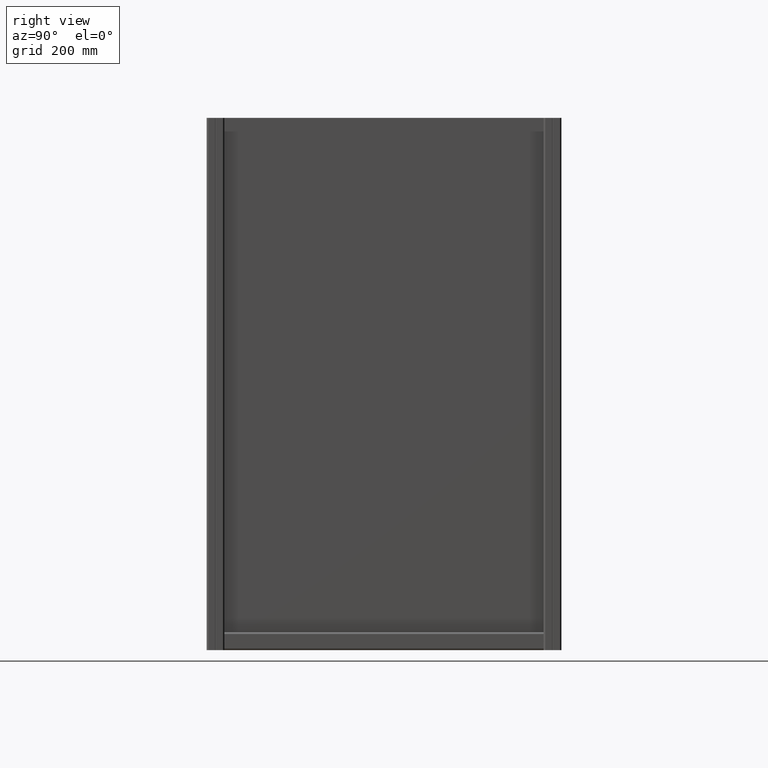
[diagram: clean part render]
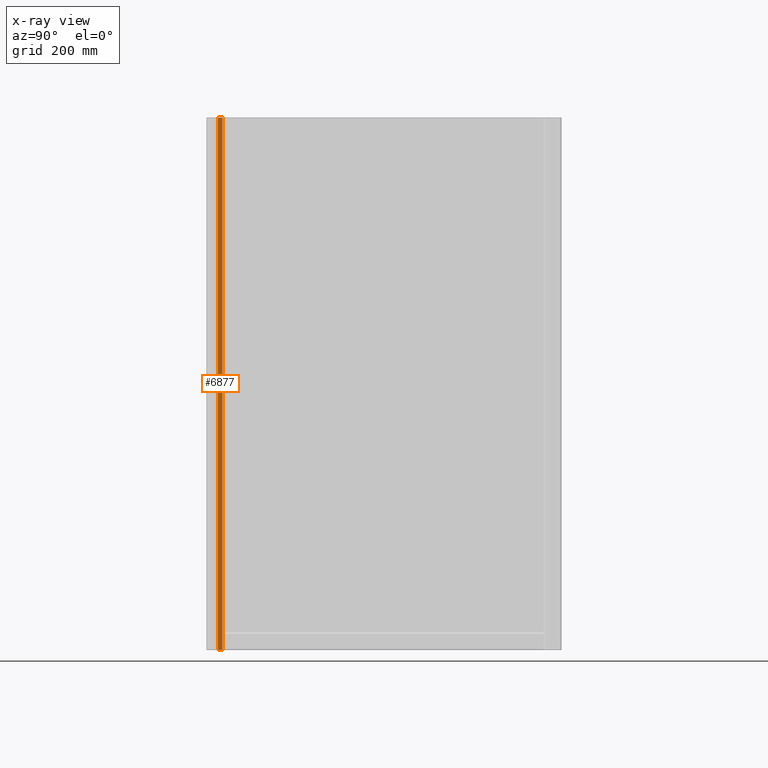
[diagram: x-ray — body ghosted, one internal face saturated and labeled with its STEP entity id]
A machine part, right view, then the same camera in x-ray: the body is ghosted and one INTERNAL B-rep face — a face not visible from any outside direction — is saturated and labeled: STEP entity #6877.
In plain terms, the highlighted planar face has unit normal (-1, 0, 0).
Its self-contained STEP definition (entity closure, byte-faithful):
#956 = PLANE ( 'NONE',  #4776 ) ;
#971 = VERTEX_POINT ( 'NONE', #6863 ) ;
#1059 = EDGE_CURVE ( 'NONE', #971, #6104, #2384, .T. ) ;
#1331 = VERTEX_POINT ( 'NONE', #5779 ) ;
#1577 = EDGE_CURVE ( 'NONE', #6104, #1331, #10447, .T. ) ;
#1637 = DIRECTION ( 'NONE',  ( 0.000000000000000000, 0.000000000000000000, 1.000000000000000000 ) ) ;
#1752 = EDGE_CURVE ( 'NONE', #11411, #971, #2713, .T. ) ;
#2384 = LINE ( 'NONE', #7329, #6241 ) ;
#2669 = EDGE_LOOP ( 'NONE', ( #10037, #8828, #10463, #5931 ) ) ;
#2713 = LINE ( 'NONE', #4408, #6606 ) ;
#2824 = VECTOR ( 'NONE', #6333, 1000.000000000000000 ) ;
#3017 = CARTESIAN_POINT ( 'NONE',  ( 20.00000000000000000, 15.50000000000180123, -600.0000000000000000 ) ) ;
#4408 = CARTESIAN_POINT ( 'NONE',  ( 20.00000000000000000, 15.50000000000180123, -600.0000000000000000 ) ) ;
#4776 = AXIS2_PLACEMENT_3D ( 'NONE', #8862, #7059, #1637 ) ;
#5437 = FACE_OUTER_BOUND ( 'NONE', #2669, .T. ) ;
#5779 = CARTESIAN_POINT ( 'NONE',  ( 20.00000000000000000, 15.50000000000180123, 600.0000000000000000 ) ) ;
#5931 = ORIENTED_EDGE ( 'NONE', *, *, #10844, .F. ) ;
#6104 = VERTEX_POINT ( 'NONE', #9894 ) ;
#6164 = DIRECTION ( 'NONE',  ( 0.000000000000000000, -1.000000000000000000, 0.000000000000000000 ) ) ;
#6241 = VECTOR ( 'NONE', #7259, 1000.000000000000000 ) ;
#6333 = DIRECTION ( 'NONE',  ( 0.000000000000000000, 1.000000000000000000, 0.000000000000000000 ) ) ;
#6604 = CARTESIAN_POINT ( 'NONE',  ( 20.00000000000000000, 5.100000000000370903, 600.0000000000000000 ) ) ;
#6606 = VECTOR ( 'NONE', #6164, 1000.000000000000000 ) ;
#6863 = CARTESIAN_POINT ( 'NONE',  ( 20.00000000000000000, 5.100000000000370903, -600.0000000000000000 ) ) ;
#6877 = ADVANCED_FACE ( 'NONE', ( #5437 ), #956, .F. ) ;
#7059 = DIRECTION ( 'NONE',  ( -1.000000000000000000, 0.000000000000000000, 0.000000000000000000 ) ) ;
#7259 = DIRECTION ( 'NONE',  ( 0.000000000000000000, 0.000000000000000000, 1.000000000000000000 ) ) ;
#7329 = CARTESIAN_POINT ( 'NONE',  ( 20.00000000000000000, 5.100000000000370903, 800.0000000000000000 ) ) ;
#7463 = LINE ( 'NONE', #7888, #7574 ) ;
#7574 = VECTOR ( 'NONE', #9350, 1000.000000000000000 ) ;
#7888 = CARTESIAN_POINT ( 'NONE',  ( 20.00000000000000000, 15.50000000000180123, 800.0000000000000000 ) ) ;
#8828 = ORIENTED_EDGE ( 'NONE', *, *, #1059, .F. ) ;
#8862 = CARTESIAN_POINT ( 'NONE',  ( 20.00000000000000000, 5.100000000000360245, 800.0000000000000000 ) ) ;
#9350 = DIRECTION ( 'NONE',  ( 0.000000000000000000, 0.000000000000000000, -1.000000000000000000 ) ) ;
#9894 = CARTESIAN_POINT ( 'NONE',  ( 20.00000000000000000, 5.100000000000370903, 600.0000000000000000 ) ) ;
#10037 = ORIENTED_EDGE ( 'NONE', *, *, #1577, .F. ) ;
#10447 = LINE ( 'NONE', #6604, #2824 ) ;
#10463 = ORIENTED_EDGE ( 'NONE', *, *, #1752, .F. ) ;
#10844 = EDGE_CURVE ( 'NONE', #1331, #11411, #7463, .T. ) ;
#11411 = VERTEX_POINT ( 'NONE', #3017 ) ;